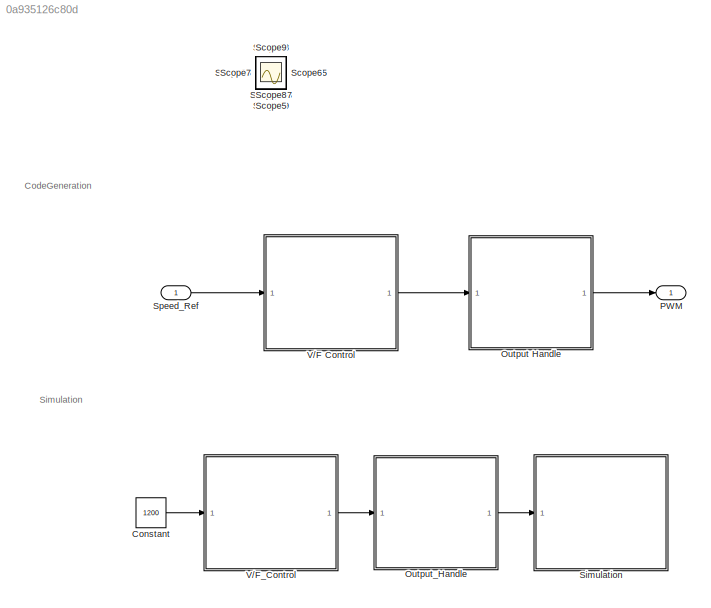
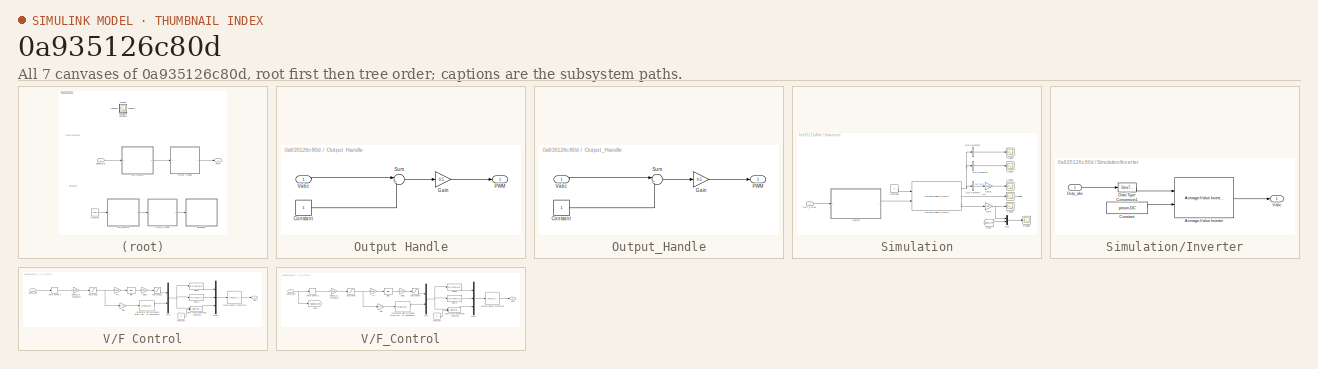
[diagram: thumbnail index - all 7 canvases of the model, root first then tree order]
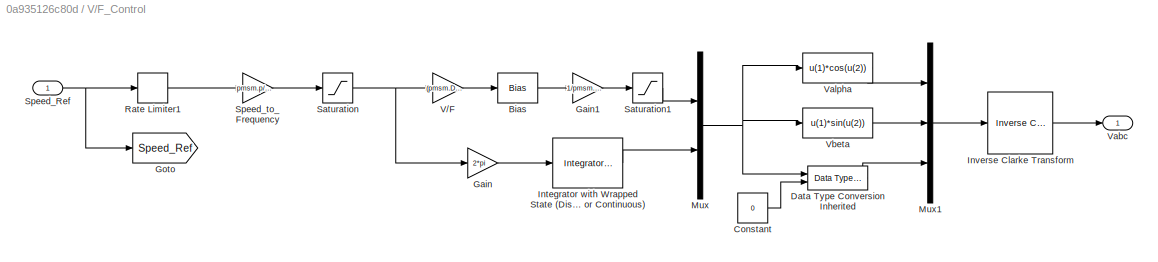
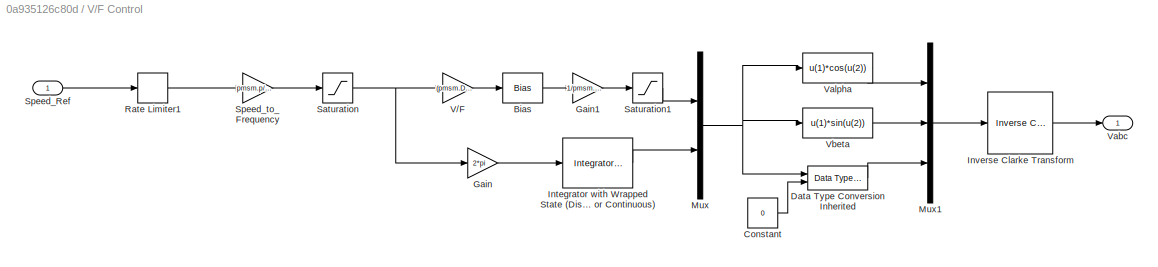
MODEL slx_0a935126c80d
KIND model
CONFIG AbsTol = auto
CONFIG EnableMultiTasking = on
CONFIG FixedStep = Ts
CONFIG MaxStep = auto
CONFIG MinStep = auto
CONFIG RelTol = 1e-3
CONFIG SampleTimeConstraint = Unconstrained
CONFIG SolverName = FixedStepAuto
CONFIG StartTime = 0.0
CONFIG StopTime = 10
BLOCK [Constant] Constant
  OutDataTypeStr = single
  Value = 1200
BLOCK [SubSystem] Output Handle
  Ports = [1, 1]
  RequestExecContextInheritance = off
BLOCK [Constant] Output Handle/Constant
  OutDataTypeStr = single
BLOCK [Gain] Output Handle/Gain
  Gain = 0.5
BLOCK [Outport] Output Handle/PWM
BLOCK [Sum] Output Handle/Sum
  Inputs = |++
  Ports = [2, 1]
BLOCK [Inport] Output Handle/Vabc
BLOCK [SubSystem] Output_Handle
  Ports = [1, 1]
  RequestExecContextInheritance = off
BLOCK [Constant] Output_Handle/Constant
  OutDataTypeStr = single
BLOCK [Gain] Output_Handle/Gain
  Gain = 0.5
BLOCK [Outport] Output_Handle/PWM
BLOCK [Sum] Output_Handle/Sum
  Inputs = |++
  Ports = [2, 1]
BLOCK [Inport] Output_Handle/Vabc
BLOCK [Outport] PWM
BLOCK [Scope] Scope
  Floating = off
  IOType = viewer
  NumInputPorts = 1
  Ports = []
  ScopeSpecificationString = Simulink.scopes.TimeScopeBlockCfg('CurrentConfiguration', extmgr.ConfigurationSet(extmgr.Configuration('Core','General UI',true),extmgr.Configuration('Core','Source UI',true),extmgr.Configuration('Sources','WiredSimulink',true),extmgr.Configuration('Visuals','Time Domain',true,'SerializedDisplays',{struct('MinYLimReal','-5.83392','MaxYLimReal','52.50525','YLabelReal','','MinYLimMag','0.00000','Max...<+1349ch>
BLOCK [Scope] Scope1
  Floating = off
  IOType = viewer
  NumInputPorts = 1
  Ports = []
  ScopeSpecificationString = Simulink.scopes.TimeScopeBlockCfg('CurrentConfiguration', extmgr.ConfigurationSet(extmgr.Configuration('Core','General UI',true),extmgr.Configuration('Core','Source UI',true),extmgr.Configuration('Sources','WiredSimulink',true,'DataLoggingVariableName','ScopeData4'),extmgr.Configuration('Visuals','Time Domain',true,'SerializedDisplays',{struct('MinYLimReal','-0.08334','MaxYLimReal','0.75008','YLab...<+1384ch>
BLOCK [Scope] Scope10
  Floating = off
  IOType = viewer
  NumInputPorts = 1
  Ports = []
  ScopeSpecificationString = Simulink.scopes.TimeScopeBlockCfg('CurrentConfiguration', extmgr.ConfigurationSet(extmgr.Configuration('Core','General UI',true),extmgr.Configuration('Core','Source UI',true),extmgr.Configuration('Sources','WiredSimulink',true,'DataLoggingVariableName','ScopeData9'),extmgr.Configuration('Visuals','Time Domain',true,'SerializedDisplays',{struct('MinYLimReal','-3.6531','MaxYLimReal','3.6531','YLabel...<+1457ch>
BLOCK [Scope] Scope11
  Floating = off
  IOType = viewer
  NumInputPorts = 1
  Ports = []
  ScopeSpecificationString = Simulink.scopes.TimeScopeBlockCfg('CurrentConfiguration', extmgr.ConfigurationSet(extmgr.Configuration('Core','General UI',true),extmgr.Configuration('Core','Source UI',true),extmgr.Configuration('Sources','WiredSimulink',true,'DataLoggingVariableName','ScopeData10'),extmgr.Configuration('Visuals','Time Domain',true,'SerializedDisplays',{struct('MinYLimReal','-0.78539','MaxYLimReal','7.06852','YLa...<+1462ch>
BLOCK [Scope] Scope12
  Floating = off
  IOType = viewer
  NumInputPorts = 1
  Ports = []
  ScopeSpecificationString = Simulink.scopes.TimeScopeBlockCfg('CurrentConfiguration', extmgr.ConfigurationSet(extmgr.Configuration('Core','General UI',true),extmgr.Configuration('Core','Source UI',true),extmgr.Configuration('Sources','WiredSimulink',true,'DataLoggingVariableName','ScopeData11'),extmgr.Configuration('Visuals','Time Domain',true,'SerializedDisplays',{struct('MinYLimReal','0.4','MaxYLimReal','0.6','YLabelReal',...<+1351ch>
BLOCK [Scope] Scope13
  Floating = off
  IOType = viewer
  NumInputPorts = 1
  Ports = []
  ScopeSpecificationString = Simulink.scopes.TimeScopeBlockCfg('CurrentConfiguration', extmgr.ConfigurationSet(extmgr.Configuration('Core','General UI',true),extmgr.Configuration('Core','Source UI',true),extmgr.Configuration('Sources','WiredSimulink',true,'DataLoggingVariableName','ScopeData12'),extmgr.Configuration('Visuals','Time Domain',true,'SerializedDisplays',{struct('MinYLimReal','-1.1875','MaxYLimReal','1.1875','YLabe...<+1425ch>
BLOCK [Scope] Scope14
  Floating = off
  IOType = viewer
  NumInputPorts = 1
  Ports = []
  ScopeSpecificationString = Simulink.scopes.TimeScopeBlockCfg('CurrentConfiguration', extmgr.ConfigurationSet(extmgr.Configuration('Core','General UI',true),extmgr.Configuration('Core','Source UI',true),extmgr.Configuration('Sources','WiredSimulink',true,'DataLoggingVariableName','ScopeData14'),extmgr.Configuration('Visuals','Time Domain',true,'SerializedDisplays',{struct('MinYLimReal','-1.25','MaxYLimReal','11.25','YLabelRe...<+1390ch>
BLOCK [Scope] Scope15
  Floating = off
  IOType = viewer
  NumInputPorts = 1
  Ports = []
  ScopeSpecificationString = Simulink.scopes.TimeScopeBlockCfg('CurrentConfiguration', extmgr.ConfigurationSet(extmgr.Configuration('Core','General UI',true),extmgr.Configuration('Core','Source UI',true),extmgr.Configuration('Sources','WiredSimulink',true,'DataLoggingVariableName','ScopeData1'),extmgr.Configuration('Visuals','Time Domain',true,'SerializedDisplays',{struct('MinYLimReal','-0.02865','MaxYLimReal','0.04948','YLab...<+1430ch>
BLOCK [Scope] Scope16
  Floating = off
  IOType = viewer
  NumInputPorts = 1
  Ports = []
  ScopeSpecificationString = Simulink.scopes.TimeScopeBlockCfg('CurrentConfiguration', extmgr.ConfigurationSet(extmgr.Configuration('Core','General UI',true),extmgr.Configuration('Core','Source UI',true),extmgr.Configuration('Sources','WiredSimulink',true,'DataLoggingVariableName','ScopeData2'),extmgr.Configuration('Visuals','Time Domain',true,'SerializedDisplays',{struct('MinYLimReal','0.48568','MaxYLimReal','0.52474','YLabe...<+1433ch>
BLOCK [Scope] Scope17
  Floating = off
  IOType = viewer
  NumInputPorts = 1
  Ports = []
  ScopeSpecificationString = Simulink.scopes.TimeScopeBlockCfg('CurrentConfiguration', extmgr.ConfigurationSet(extmgr.Configuration('Core','General UI',true),extmgr.Configuration('Core','Source UI',true),extmgr.Configuration('Sources','WiredSimulink',true,'DataLoggingVariableName','ScopeData3'),extmgr.Configuration('Visuals','Time Domain',true,'SerializedDisplays',{struct('MinYLimReal','-0.00521','MaxYLimReal','0.04688','YLab...<+1431ch>
BLOCK [Scope] Scope18
  Floating = off
  IOType = viewer
  NumInputPorts = 1
  Ports = []
  ScopeSpecificationString = Simulink.scopes.TimeScopeBlockCfg('CurrentConfiguration', extmgr.ConfigurationSet(extmgr.Configuration('Core','General UI',true),extmgr.Configuration('Core','Source UI',true),extmgr.Configuration('Sources','WiredSimulink',true,'DataLoggingVariableName','ScopeData1'),extmgr.Configuration('Visuals','Time Domain',true,'SerializedDisplays',{struct('MinYLimReal','350.00000','MaxYLimReal','8850.00000','...<+1412ch>
BLOCK [Scope] Scope19
  Floating = off
  IOType = viewer
  NumInputPorts = 1
  Ports = []
  ScopeSpecificationString = Simulink.scopes.TimeScopeBlockCfg('CurrentConfiguration', extmgr.ConfigurationSet(extmgr.Configuration('Core','General UI',true),extmgr.Configuration('Core','Source UI',true),extmgr.Configuration('Sources','WiredSimulink',true,'DataLoggingVariableName','ScopeData2'),extmgr.Configuration('Visuals','Time Domain',true,'SerializedDisplays',{struct('MinYLimReal','40.83334','MaxYLimReal','1032.49998','Y...<+1408ch>
BLOCK [Scope] Scope2
  Floating = off
  IOType = viewer
  NumInputPorts = 1
  Ports = []
  ScopeSpecificationString = Simulink.scopes.TimeScopeBlockCfg('CurrentConfiguration', extmgr.ConfigurationSet(extmgr.Configuration('Core','General UI',true),extmgr.Configuration('Core','Source UI',true),extmgr.Configuration('Sources','WiredSimulink',true,'DataLoggingVariableName','ScopeData1'),extmgr.Configuration('Visuals','Time Domain',true,'SerializedDisplays',{struct('MinYLimReal','60.00000','MaxYLimReal','80.00000','YLa...<+1400ch>
BLOCK [Scope] Scope20
  Floating = off
  IOType = viewer
  NumInputPorts = 1
  Ports = []
  ScopeSpecificationString = Simulink.scopes.TimeScopeBlockCfg('CurrentConfiguration', extmgr.ConfigurationSet(extmgr.Configuration('Core','General UI',true),extmgr.Configuration('Core','Source UI',true),extmgr.Configuration('Sources','WiredSimulink',true,'DataLoggingVariableName','ScopeData3'),extmgr.Configuration('Visuals','Time Domain',true,'SerializedDisplays',{struct('MinYLimReal','1.30702','MaxYLimReal','8.76316','YLabe...<+1382ch>
BLOCK [Scope] Scope21
  Floating = off
  IOType = viewer
  NumInputPorts = 1
  Ports = []
  ScopeSpecificationString = Simulink.scopes.TimeScopeBlockCfg('CurrentConfiguration', extmgr.ConfigurationSet(extmgr.Configuration('Core','General UI',true),extmgr.Configuration('Core','Source UI',true),extmgr.Configuration('Sources','WiredSimulink',true,'DataLoggingVariableName','ScopeData4'),extmgr.Configuration('Visuals','Time Domain',true,'SerializedDisplays',{struct('MinYLimReal','-0.78539','MaxYLimReal','7.06855','YLab...<+1430ch>
BLOCK [Scope] Scope22
  Floating = off
  IOType = viewer
  NumInputPorts = 1
  Ports = []
  ScopeSpecificationString = Simulink.scopes.TimeScopeBlockCfg('CurrentConfiguration', extmgr.ConfigurationSet(extmgr.Configuration('Core','General UI',true),extmgr.Configuration('Core','Source UI',true),extmgr.Configuration('Sources','WiredSimulink',true,'DataLoggingVariableName','ScopeData5'),extmgr.Configuration('Visuals','Time Domain',true,'SerializedDisplays',{struct('MinYLimReal','0.10892','MaxYLimReal','0.73026','YLabe...<+1357ch>
BLOCK [Scope] Scope23
  Floating = off
  IOType = viewer
  NumInputPorts = 1
  Ports = []
  ScopeSpecificationString = Simulink.scopes.TimeScopeBlockCfg('CurrentConfiguration', extmgr.ConfigurationSet(extmgr.Configuration('Core','General UI',true),extmgr.Configuration('Core','Source UI',true),extmgr.Configuration('Sources','WiredSimulink',true,'DataLoggingVariableName','ScopeData6'),extmgr.Configuration('Visuals','Time Domain',true,'SerializedDisplays',{struct('MinYLimReal','-0.21382','MaxYLimReal','0.21382','YLab...<+1430ch>
BLOCK [Scope] Scope24
  Floating = off
  IOType = viewer
  NumInputPorts = 1
  Ports = []
  ScopeSpecificationString = Simulink.scopes.TimeScopeBlockCfg('CurrentConfiguration', extmgr.ConfigurationSet(extmgr.Configuration('Core','General UI',true),extmgr.Configuration('Core','Source UI',true),extmgr.Configuration('Sources','WiredSimulink',true,'DataLoggingVariableName','ScopeData7'),extmgr.Configuration('Visuals','Time Domain',true,'SerializedDisplays',{struct('MinYLimReal','-0.21382','MaxYLimReal','0.21382','YLab...<+1430ch>
BLOCK [Scope] Scope25
  Floating = off
  IOType = viewer
  NumInputPorts = 1
  Ports = []
  ScopeSpecificationString = Simulink.scopes.TimeScopeBlockCfg('CurrentConfiguration', extmgr.ConfigurationSet(extmgr.Configuration('Core','General UI',true),extmgr.Configuration('Core','Source UI',true),extmgr.Configuration('Sources','WiredSimulink',true,'DataLoggingVariableName','ScopeData8'),extmgr.Configuration('Visuals','Time Domain',true,'SerializedDisplays',{struct('MinYLimReal','0.39309','MaxYLimReal','0.60691','YLabe...<+1428ch>
BLOCK [Scope] Scope26
  Floating = off
  IOType = viewer
  NumInputPorts = 1
  Ports = []
  ScopeSpecificationString = Simulink.scopes.TimeScopeBlockCfg('CurrentConfiguration', extmgr.ConfigurationSet(extmgr.Configuration('Core','General UI',true),extmgr.Configuration('Core','Source UI',true),extmgr.Configuration('Sources','WiredSimulink',true,'DataLoggingVariableName','ScopeData9'),extmgr.Configuration('Visuals','Time Domain',true,'SerializedDisplays',{struct('MinYLimReal','-5.01091','MaxYLimReal','5.01091','YLab...<+1384ch>
BLOCK [Scope] Scope27
  Floating = off
  IOType = viewer
  NumInputPorts = 1
  Ports = []
  ScopeSpecificationString = Simulink.scopes.TimeScopeBlockCfg('CurrentConfiguration', extmgr.ConfigurationSet(extmgr.Configuration('Core','General UI',true),extmgr.Configuration('Core','Source UI',true),extmgr.Configuration('Sources','WiredSimulink',true,'DataLoggingVariableName','ScopeData1'),extmgr.Configuration('Visuals','Time Domain',true),extmgr.Configuration('Tools','Plot Navigation',true),extmgr.Configuration('Tools',...<+58ch>
BLOCK [Scope] Scope28
  Floating = off
  IOType = viewer
  NumInputPorts = 1
  Ports = []
  ScopeSpecificationString = Simulink.scopes.TimeScopeBlockCfg('CurrentConfiguration', extmgr.ConfigurationSet(extmgr.Configuration('Core','General UI',true),extmgr.Configuration('Core','Source UI',true),extmgr.Configuration('Sources','WiredSimulink',true,'DataLoggingVariableName','ScopeData2'),extmgr.Configuration('Visuals','Time Domain',true),extmgr.Configuration('Tools','Plot Navigation',true),extmgr.Configuration('Tools',...<+58ch>
BLOCK [Scope] Scope29
  Floating = off
  IOType = viewer
  NumInputPorts = 1
  Ports = []
  ScopeSpecificationString = Simulink.scopes.TimeScopeBlockCfg('CurrentConfiguration', extmgr.ConfigurationSet(extmgr.Configuration('Core','General UI',true),extmgr.Configuration('Core','Source UI',true),extmgr.Configuration('Sources','WiredSimulink',true,'DataLoggingVariableName','ScopeData3'),extmgr.Configuration('Visuals','Time Domain',true),extmgr.Configuration('Tools','Plot Navigation',true),extmgr.Configuration('Tools',...<+58ch>
BLOCK [Scope] Scope3
  Floating = off
  IOType = viewer
  NumInputPorts = 1
  Ports = []
  ScopeSpecificationString = Simulink.scopes.TimeScopeBlockCfg('CurrentConfiguration', extmgr.ConfigurationSet(extmgr.Configuration('Core','General UI',true),extmgr.Configuration('Core','Source UI',true),extmgr.Configuration('Sources','WiredSimulink',true,'DataLoggingVariableName','ScopeData2'),extmgr.Configuration('Visuals','Time Domain',true,'SerializedDisplays',{struct('MinYLimReal','0.000007','MaxYLimReal','0.000027','YLa...<+1365ch>
BLOCK [Scope] Scope30
  Floating = off
  IOType = viewer
  NumInputPorts = 1
  Ports = []
  ScopeSpecificationString = Simulink.scopes.TimeScopeBlockCfg('CurrentConfiguration', extmgr.ConfigurationSet(extmgr.Configuration('Core','General UI',true),extmgr.Configuration('Core','Source UI',true),extmgr.Configuration('Sources','WiredSimulink',true,'DataLoggingVariableName','ScopeData4'),extmgr.Configuration('Visuals','Time Domain',true),extmgr.Configuration('Tools','Plot Navigation',true),extmgr.Configuration('Tools',...<+58ch>
BLOCK [Scope] Scope31
  Floating = off
  IOType = viewer
  NumInputPorts = 1
  Ports = []
  ScopeSpecificationString = Simulink.scopes.TimeScopeBlockCfg('CurrentConfiguration', extmgr.ConfigurationSet(extmgr.Configuration('Core','General UI',true),extmgr.Configuration('Core','Source UI',true),extmgr.Configuration('Sources','WiredSimulink',true,'DataLoggingVariableName','ScopeData5'),extmgr.Configuration('Visuals','Time Domain',true),extmgr.Configuration('Tools','Plot Navigation',true),extmgr.Configuration('Tools',...<+58ch>
BLOCK [Scope] Scope4
  Floating = off
  IOType = viewer
  NumInputPorts = 1
  Ports = []
  ScopeSpecificationString = Simulink.scopes.TimeScopeBlockCfg('CurrentConfiguration', extmgr.ConfigurationSet(extmgr.Configuration('Core','General UI',true),extmgr.Configuration('Core','Source UI',true),extmgr.Configuration('Sources','WiredSimulink',true,'DataLoggingVariableName','ScopeData3'),extmgr.Configuration('Visuals','Time Domain',true,'SerializedDisplays',{struct('MinYLimReal','-0.08329','MaxYLimReal','0.74962','YLab...<+1359ch>
BLOCK [Scope] Scope5
  Floating = off
  IOType = viewer
  NumInputPorts = 1
  Ports = []
  ScopeSpecificationString = Simulink.scopes.TimeScopeBlockCfg('CurrentConfiguration', extmgr.ConfigurationSet(extmgr.Configuration('Core','General UI',true),extmgr.Configuration('Core','Source UI',true),extmgr.Configuration('Sources','WiredSimulink',true,'DataLoggingVariableName','ScopeData4'),extmgr.Configuration('Visuals','Time Domain',true,'SerializedDisplays',{struct('MinYLimReal','-0.125','MaxYLimReal','1.125','YLabelRe...<+1378ch>
BLOCK [Scope] Scope6
  Floating = off
  IOType = viewer
  NumInputPorts = 1
  Ports = []
  ScopeSpecificationString = Simulink.scopes.TimeScopeBlockCfg('CurrentConfiguration', extmgr.ConfigurationSet(extmgr.Configuration('Core','General UI',true),extmgr.Configuration('Core','Source UI',true),extmgr.Configuration('Sources','WiredSimulink',true,'DataLoggingVariableName','ScopeData5'),extmgr.Configuration('Visuals','Time Domain',true,'SerializedDisplays',{struct('MinYLimReal','-0.1875','MaxYLimReal','0.1875','YLabel...<+1424ch>
BLOCK [Scope] Scope7
  Floating = off
  IOType = viewer
  NumInputPorts = 1
  Ports = []
  ScopeSpecificationString = Simulink.scopes.TimeScopeBlockCfg('CurrentConfiguration', extmgr.ConfigurationSet(extmgr.Configuration('Core','General UI',true),extmgr.Configuration('Core','Source UI',true),extmgr.Configuration('Sources','WiredSimulink',true,'DataLoggingVariableName','ScopeData6'),extmgr.Configuration('Visuals','Time Domain',true,'SerializedDisplays',{struct('MinYLimReal','0.97135','MaxYLimReal','1.04948','YLabe...<+1535ch>
BLOCK [Scope] Scope8
  Floating = off
  IOType = viewer
  NumInputPorts = 1
  Ports = []
  ScopeSpecificationString = Simulink.scopes.TimeScopeBlockCfg('CurrentConfiguration', extmgr.ConfigurationSet(extmgr.Configuration('Core','General UI',true),extmgr.Configuration('Core','Source UI',true),extmgr.Configuration('Sources','WiredSimulink',true,'DataLoggingVariableName','ScopeData7'),extmgr.Configuration('Visuals','Time Domain',true,'SerializedDisplays',{struct('MinYLimReal','0.40625','MaxYLimReal','0.59375','YLabe...<+1428ch>
BLOCK [Scope] Scope9
  Floating = off
  IOType = viewer
  NumInputPorts = 1
  Ports = []
  ScopeSpecificationString = Simulink.scopes.TimeScopeBlockCfg('CurrentConfiguration', extmgr.ConfigurationSet(extmgr.Configuration('Core','General UI',true),extmgr.Configuration('Core','Source UI',true),extmgr.Configuration('Sources','WiredSimulink',true,'DataLoggingVariableName','ScopeData8'),extmgr.Configuration('Visuals','Time Domain',true,'SerializedDisplays',{struct('MinYLimReal','0.39754','MaxYLimReal','0.60246','YLabe...<+1817ch>
BLOCK [SubSystem] Simulation
  Ports = [1]
  RequestExecContextInheritance = off
BLOCK [BusSelector] Simulation/Bus Selector
  OutputSignals = MtrPos
  Ports = [1, 1]
BLOCK [BusSelector] Simulation/Bus Selector1
  OutputAsBus = on
  OutputSignals = IdSync,IqSync
  Ports = [1, 1]
BLOCK [BusSelector] Simulation/Bus Selector2
  OutputAsBus = on
  OutputSignals = MtrTrq
  Ports = [1, 1]
BLOCK [Constant] Simulation/Constant
  Value = 0
BLOCK [Inport] Simulation/Duty_Cycles
BLOCK [From] Simulation/From
  GotoTag = Speed_Ref
  TagVisibility = global
BLOCK [Gain] Simulation/Gain
  Gain = 30/pi
  OutDataTypeStr = single
BLOCK [Gain] Simulation/Gain1
  Gain = pmsm.p
BLOCK [SubSystem] Simulation/Inverter
  Ports = [1, 1]
  RequestExecContextInheritance = off
BLOCK [Reference] Simulation/Inverter/Average-Value Inverter  REF=mcbplantlib/Average-Value Inverter
  Ports = [2, 1]
  SourceBlock = mcbplantlib/Average-Value Inverter
  SourceProductBaseCode = MT
  SourceType = Average Value Inverter
BLOCK [Constant] Simulation/Inverter/Constant
  OutDataTypeStr = single
  Value = pmsm.DC
BLOCK [DataTypeConversion] Simulation/Inverter/Data Type Conversion1
  OutDataTypeStr = single
  RndMeth = Simplest
  SaturateOnIntegerOverflow = off
BLOCK [Inport] Simulation/Inverter/Duty_abc
BLOCK [Outport] Simulation/Inverter/Vabc
  VectorParamsAs1DForOutWhenUnconnected = off
BLOCK [Mux] Simulation/Mux
  DisplayOption = bar
  Inputs = 2
  Ports = [2, 1]
BLOCK [Scope] Simulation/Scope
  Floating = off
  NumInputPorts = 1
  Ports = [1]
  ScopeSpecificationString = Simulink.scopes.TimeScopeBlockCfg('CurrentConfiguration', extmgr.ConfigurationSet(extmgr.Configuration('Core','General UI',true),extmgr.Configuration('Core','Source UI',true),extmgr.Configuration('Sources','WiredSimulink',true,'DataLoggingVariableName','ScopeData1'),extmgr.Configuration('Visuals','Time Domain',true,'SerializedDisplays',{struct('MinYLimReal','-150.08986','MaxYLimReal','1350.80875',...<+1483ch>
BLOCK [Scope] Simulation/Scope1
  Floating = off
  NumInputPorts = 1
  Ports = [1]
  ScopeSpecificationString = Simulink.scopes.TimeScopeBlockCfg('CurrentConfiguration', extmgr.ConfigurationSet(extmgr.Configuration('Core','General UI',true),extmgr.Configuration('Core','Source UI',true),extmgr.Configuration('Sources','WiredSimulink',true,'DataLoggingVariableName','ScopeData2'),extmgr.Configuration('Visuals','Time Domain',true,'SerializedDisplays',{struct('MinYLimReal','-4.38371','MaxYLimReal','4.38403','YLab...<+1489ch>
BLOCK [Scope] Simulation/Scope2
  Floating = off
  NumInputPorts = 1
  Ports = [1]
  ScopeSpecificationString = Simulink.scopes.TimeScopeBlockCfg('CurrentConfiguration', extmgr.ConfigurationSet(extmgr.Configuration('Core','General UI',true),extmgr.Configuration('Core','Source UI',true),extmgr.Configuration('Sources','WiredSimulink',true,'DataLoggingVariableName','ScopeData3'),extmgr.Configuration('Visuals','Time Domain',true,'SerializedDisplays',{struct('MinYLimReal','-27.48879','MaxYLimReal','27.48891','YL...<+1474ch>
BLOCK [Scope] Simulation/Scope3
  Floating = off
  NumInputPorts = 1
  Ports = [1]
  ScopeSpecificationString = Simulink.scopes.TimeScopeBlockCfg('CurrentConfiguration', extmgr.ConfigurationSet(extmgr.Configuration('Core','General UI',true),extmgr.Configuration('Core','Source UI',true),extmgr.Configuration('Sources','WiredSimulink',true,'DataLoggingVariableName','ScopeData10'),extmgr.Configuration('Visuals','Time Domain',true,'SerializedDisplays',{struct('MinYLimReal','-150.08992','MaxYLimReal','1350.80928'...<+1543ch>
BLOCK [Scope] Simulation/Scope4
  Floating = off
  NumInputPorts = 1
  Ports = [1]
  ScopeSpecificationString = Simulink.scopes.TimeScopeBlockCfg('CurrentConfiguration', extmgr.ConfigurationSet(extmgr.Configuration('Core','General UI',true),extmgr.Configuration('Core','Source UI',true),extmgr.Configuration('Sources','WiredSimulink',true,'DataLoggingVariableName','ScopeData11'),extmgr.Configuration('Visuals','Time Domain',true,'SerializedDisplays',{struct('MinYLimReal','-2.0621','MaxYLimReal','4.12592','YLab...<+1505ch>
BLOCK [Scope] Simulation/Scope5
  Floating = off
  NumInputPorts = 1
  Ports = [1]
  ScopeSpecificationString = Simulink.scopes.TimeScopeBlockCfg('CurrentConfiguration', extmgr.ConfigurationSet(extmgr.Configuration('Core','General UI',true),extmgr.Configuration('Core','Source UI',true),extmgr.Configuration('Sources','WiredSimulink',true,'DataLoggingVariableName','ScopeData12'),extmgr.Configuration('Visuals','Time Domain',true,'SerializedDisplays',{struct('MinYLimReal','-0.00034','MaxYLimReal','0.00084','YLa...<+1479ch>
BLOCK [Reference] Simulation/Surface Mount PMSM  REF=autolibpmsmexterior/Surface Mount PMSM
  Ports = [2, 3]
  SourceBlock = autolibpmsmexterior/Surface Mount PMSM
  SourceProductBaseCode = PW,DR,MT,VE
  SourceType = Surface Mount PMSM
BLOCK [Inport] Speed_Ref
  OutDataTypeStr = single
BLOCK [SubSystem] V//F Control
  Ports = [1, 1]
  RequestExecContextInheritance = off
BLOCK [Bias] V//F Control/Bias
  Bias = Vmin
  SaturateOnIntegerOverflow = off
BLOCK [Constant] V//F Control/Constant
  OutDataTypeStr = single
  Value = 0
BLOCK [Reference] V//F Control/Data Type Conversion Inherited  REF=simulink/Signal
Attributes/Data Type
Conversion
Inherited
  Ports = [2, 1]
  SourceBlock = simulink/Signal\nAttributes/Data Type\nConversion\nInherited
  SourceProductBaseCode = SL
  SourceType = Conversion Inherited
BLOCK [Gain] V//F Control/Gain
  Gain = 2*pi
BLOCK [Gain] V//F Control/Gain1
  Gain = 1/pmsm.DC
BLOCK [Reference] V//F Control/Integrator with Wrapped State (Discrete or Continuous)  REF=eeGeneralControl/Integrator with
Wrapped State
(Discrete or Continuous)
  Ports = [1, 1]
  SourceBlock = eeGeneralControl/Integrator with\nWrapped State\n(Discrete or Continuous)
  SourceProductBaseCode = PS
  SourceType = Integrator with Wrapped State (Discrete or Continuous)
BLOCK [Reference] V//F Control/Inverse Clarke Transform  REF=eeTransforms/Inverse
Clarke Transform
  Ports = [1, 1]
  SourceBlock = eeTransforms/Inverse\nClarke Transform
  SourceProductBaseCode = PS
  SourceType = Inverse Clarke Transform
BLOCK [Mux] V//F Control/Mux
  DisplayOption = bar
  Inputs = 2
  Ports = [2, 1]
BLOCK [Mux] V//F Control/Mux1
  DisplayOption = bar
  Inputs = 3
  Ports = [3, 1]
BLOCK [RateLimiter] V//F Control/Rate Limiter1
  FallingSlewLimit = -500
  RisingSlewLimit = 500
  SampleTimeMode = inherited
BLOCK [Saturate] V//F Control/Saturation
  LowerLimit = 0
  UpperLimit = pmsm.F_base
BLOCK [Saturate] V//F Control/Saturation1
  LowerLimit = 0
  UpperLimit = 1
BLOCK [Inport] V//F Control/Speed_Ref
BLOCK [Gain] V//F Control/Speed_to_Frequency
  Gain = pmsm.p/60
BLOCK [Gain] V//F Control/V//F
  Gain = (pmsm.DC-Vmin)/pmsm.F_base
BLOCK [Outport] V//F Control/Vabc
BLOCK [Fcn] V//F Control/Valpha
  Expr = u(1)*cos(u(2))
BLOCK [Fcn] V//F Control/Vbeta
  Expr = u(1)*sin(u(2))
BLOCK [SubSystem] V//F_Control
  Ports = [1, 1]
  RequestExecContextInheritance = off
BLOCK [Bias] V//F_Control/Bias
  Bias = Vmin
  SaturateOnIntegerOverflow = off
BLOCK [Constant] V//F_Control/Constant
  SampleTime = Ts
  Value = 0
BLOCK [Reference] V//F_Control/Data Type Conversion Inherited  REF=simulink/Signal
Attributes/Data Type
Conversion
Inherited
  Ports = [2, 1]
  SourceBlock = simulink/Signal\nAttributes/Data Type\nConversion\nInherited
  SourceProductBaseCode = SL
  SourceType = Conversion Inherited
BLOCK [Gain] V//F_Control/Gain
  Gain = 2*pi
BLOCK [Gain] V//F_Control/Gain1
  Gain = 1/pmsm.DC
BLOCK [Goto] V//F_Control/Goto
  GotoTag = Speed_Ref
  TagVisibility = global
BLOCK [Reference] V//F_Control/Integrator with Wrapped State (Discrete or Continuous)  REF=eeGeneralControl/Integrator with
Wrapped State
(Discrete or Continuous)
  Ports = [1, 1]
  SourceBlock = eeGeneralControl/Integrator with\nWrapped State\n(Discrete or Continuous)
  SourceProductBaseCode = PS
  SourceType = Integrator with Wrapped State (Discrete or Continuous)
BLOCK [Reference] V//F_Control/Inverse Clarke Transform  REF=eeTransforms/Inverse
Clarke Transform
  Ports = [1, 1]
  SourceBlock = eeTransforms/Inverse\nClarke Transform
  SourceProductBaseCode = PS
  SourceType = Inverse Clarke Transform
BLOCK [Mux] V//F_Control/Mux
  DisplayOption = bar
  Inputs = 2
  Ports = [2, 1]
BLOCK [Mux] V//F_Control/Mux1
  DisplayOption = bar
  Inputs = 3
  Ports = [3, 1]
BLOCK [RateLimiter] V//F_Control/Rate Limiter1
  FallingSlewLimit = -500
  RisingSlewLimit = 500
  SampleTimeMode = inherited
BLOCK [Saturate] V//F_Control/Saturation
  LowerLimit = 0
  UpperLimit = pmsm.F_base
BLOCK [Saturate] V//F_Control/Saturation1
  LowerLimit = 0
  UpperLimit = 1
BLOCK [Inport] V//F_Control/Speed_Ref
BLOCK [Gain] V//F_Control/Speed_to_Frequency
  Gain = pmsm.p/60
BLOCK [Gain] V//F_Control/V//F
  Gain = (pmsm.DC-Vmin)/pmsm.F_base
BLOCK [Outport] V//F_Control/Vabc
BLOCK [Fcn] V//F_Control/Valpha
  Expr = u(1)*cos(u(2))
BLOCK [Fcn] V//F_Control/Vbeta
  Expr = u(1)*sin(u(2))
ANNOTATION (root): CodeGeneration
ANNOTATION (root): Simulation
LINE Constant:1 -> V//F_Control:1
LINE Output Handle/Constant:1 -> Output Handle/Sum:2
LINE Output Handle/Gain:1 -> Output Handle/PWM:1
LINE Output Handle/Sum:1 -> Output Handle/Gain:1
LINE Output Handle/Vabc:1 -> Output Handle/Sum:1
LINE Output Handle:1 -> PWM:1
LINE Output_Handle/Constant:1 -> Output_Handle/Sum:2
LINE Output_Handle/Gain:1 -> Output_Handle/PWM:1
LINE Output_Handle/Sum:1 -> Output_Handle/Gain:1
LINE Output_Handle/Vabc:1 -> Output_Handle/Sum:1
LINE Output_Handle:1 -> Simulation:1
LINE Simulation/Bus Selector1:1 -> Simulation/Scope4:1
LINE Simulation/Bus Selector2:1 -> Simulation/Scope5:1
LINE Simulation/Bus Selector:1 -> Simulation/Gain1:1
LINE Simulation/Constant:1 -> Simulation/Surface Mount PMSM:1
LINE Simulation/Duty_Cycles:1 -> Simulation/Inverter:1
LINE Simulation/From:1 -> Simulation/Mux:2
LINE Simulation/Gain1:1 -> Simulation/Scope2:1
NET Simulation/Gain:1 -> Simulation/Mux:1, Simulation/Scope:1
LINE Simulation/Inverter/Average-Value Inverter:1 -> Simulation/Inverter/Vabc:1
LINE Simulation/Inverter/Constant:1 -> Simulation/Inverter/Average-Value Inverter:2
LINE Simulation/Inverter/Data Type Conversion1:1 -> Simulation/Inverter/Average-Value Inverter:1
LINE Simulation/Inverter/Duty_abc:1 -> Simulation/Inverter/Data Type Conversion1:1
LINE Simulation/Inverter:1 -> Simulation/Surface Mount PMSM:2
LINE Simulation/Mux:1 -> Simulation/Scope3:1
NET Simulation/Surface Mount PMSM:1 -> Simulation/Bus Selector1:1, Simulation/Bus Selector2:1, Simulation/Bus Selector:1
LINE Simulation/Surface Mount PMSM:2 -> Simulation/Scope1:1
LINE Simulation/Surface Mount PMSM:3 -> Simulation/Gain:1
LINE Speed_Ref:1 -> V//F Control:1
LINE V//F Control/Bias:1 -> V//F Control/Gain1:1
LINE V//F Control/Constant:1 -> V//F Control/Data Type Conversion Inherited:2
LINE V//F Control/Data Type Conversion Inherited:1 -> V//F Control/Mux1:3
LINE V//F Control/Gain1:1 -> V//F Control/Saturation1:1
LINE V//F Control/Gain:1 -> V//F Control/Integrator with Wrapped State (Discrete or Continuous):1
LINE V//F Control/Integrator with Wrapped State (Discrete or Continuous):1 -> V//F Control/Mux:2
LINE V//F Control/Inverse Clarke Transform:1 -> V//F Control/Vabc:1
LINE V//F Control/Mux1:1 -> V//F Control/Inverse Clarke Transform:1
NET V//F Control/Mux:1 -> V//F Control/Data Type Conversion Inherited:1, V//F Control/Valpha:1, V//F Control/Vbeta:1
LINE V//F Control/Rate Limiter1:1 -> V//F Control/Speed_to_Frequency:1
LINE V//F Control/Saturation1:1 -> V//F Control/Mux:1
NET V//F Control/Saturation:1 -> V//F Control/Gain:1, V//F Control/V//F:1
LINE V//F Control/Speed_Ref:1 -> V//F Control/Rate Limiter1:1
LINE V//F Control/Speed_to_Frequency:1 -> V//F Control/Saturation:1
LINE V//F Control/V//F:1 -> V//F Control/Bias:1
LINE V//F Control/Valpha:1 -> V//F Control/Mux1:1
LINE V//F Control/Vbeta:1 -> V//F Control/Mux1:2
LINE V//F Control:1 -> Output Handle:1
LINE V//F_Control/Bias:1 -> V//F_Control/Gain1:1
LINE V//F_Control/Constant:1 -> V//F_Control/Data Type Conversion Inherited:2
LINE V//F_Control/Data Type Conversion Inherited:1 -> V//F_Control/Mux1:3
LINE V//F_Control/Gain1:1 -> V//F_Control/Saturation1:1
LINE V//F_Control/Gain:1 -> V//F_Control/Integrator with Wrapped State (Discrete or Continuous):1
LINE V//F_Control/Integrator with Wrapped State (Discrete or Continuous):1 -> V//F_Control/Mux:2
LINE V//F_Control/Inverse Clarke Transform:1 -> V//F_Control/Vabc:1
LINE V//F_Control/Mux1:1 -> V//F_Control/Inverse Clarke Transform:1
NET V//F_Control/Mux:1 -> V//F_Control/Data Type Conversion Inherited:1, V//F_Control/Valpha:1, V//F_Control/Vbeta:1
LINE V//F_Control/Rate Limiter1:1 -> V//F_Control/Speed_to_Frequency:1
LINE V//F_Control/Saturation1:1 -> V//F_Control/Mux:1
NET V//F_Control/Saturation:1 -> V//F_Control/Gain:1, V//F_Control/V//F:1
NET V//F_Control/Speed_Ref:1 -> V//F_Control/Goto:1, V//F_Control/Rate Limiter1:1
LINE V//F_Control/Speed_to_Frequency:1 -> V//F_Control/Saturation:1
LINE V//F_Control/V//F:1 -> V//F_Control/Bias:1
LINE V//F_Control/Valpha:1 -> V//F_Control/Mux1:1
LINE V//F_Control/Vbeta:1 -> V//F_Control/Mux1:2
LINE V//F_Control:1 -> Output_Handle:1
note: NET lines group one-source signal fan-out (src -> all destinations, sorted); 1:1 wires keep LINE
